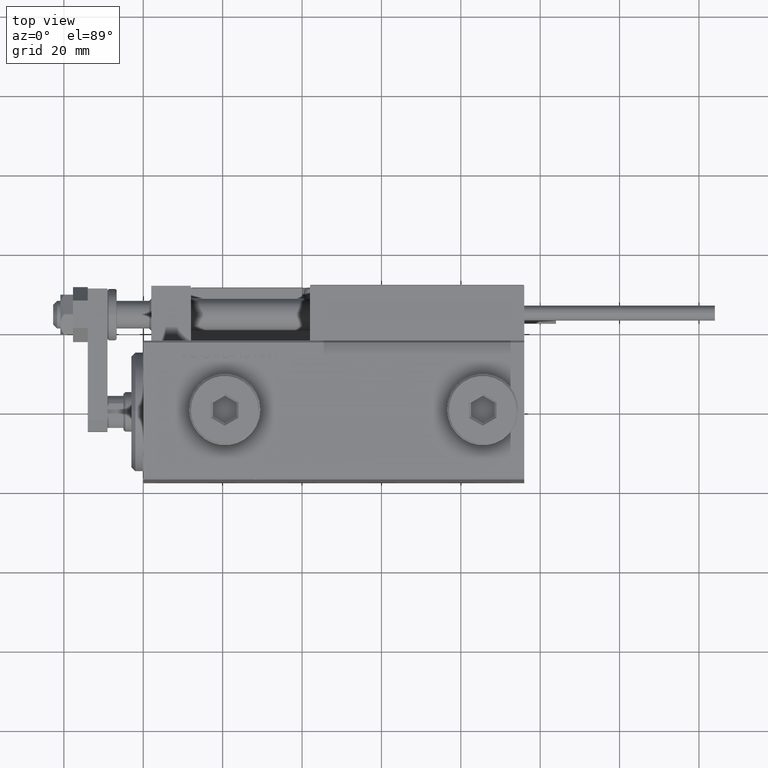
[diagram: clean part render]
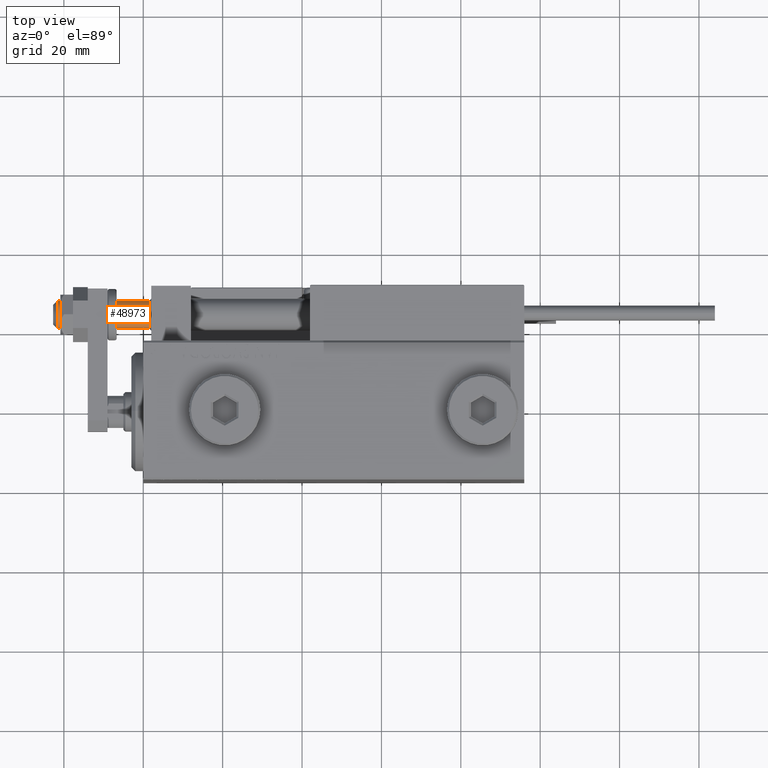
[diagram: same view with one face highlighted and labeled with its STEP entity id]
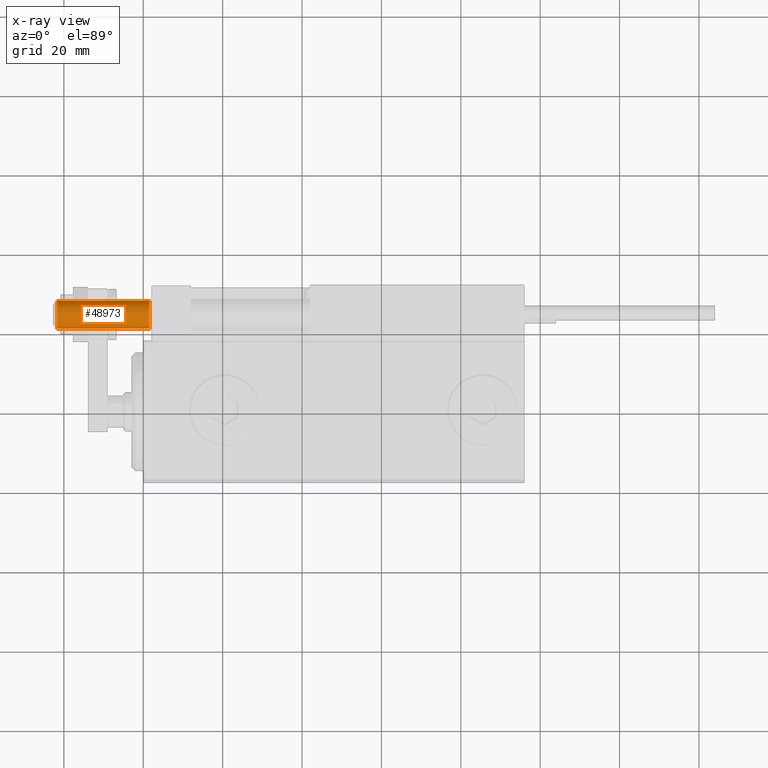
[diagram: x-ray of the same camera — body ghosted, the highlighted face saturated]
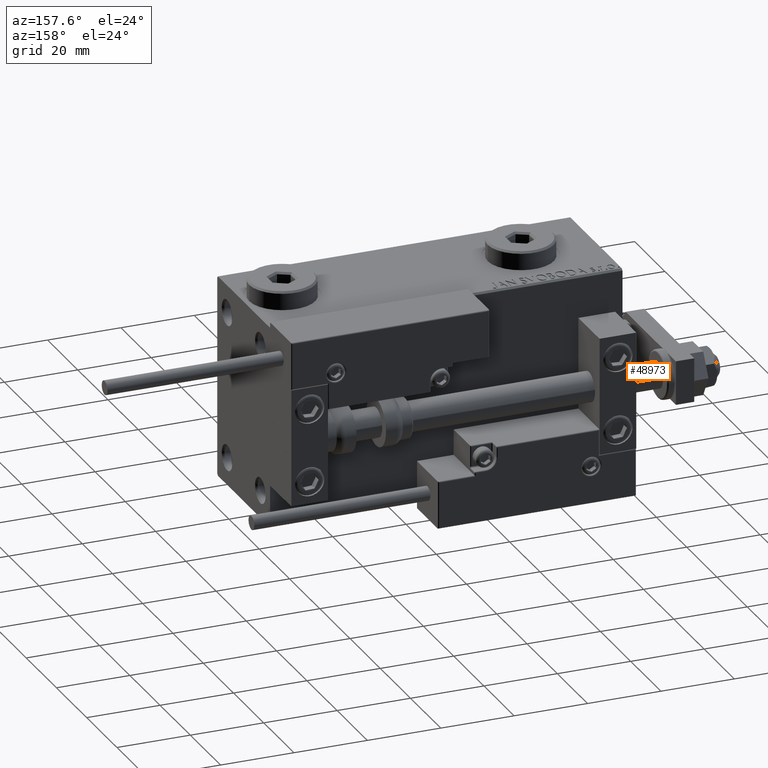
[diagram: same view with one face highlighted and labeled with its STEP entity id]
A machine part, top view. The second image highlights one B-rep face of the part: STEP entity #48973.
The next image is the same camera in x-ray: the body ghosted, the highlighted face saturated — about 0% of this face is hidden behind the body in this view.
A second angle (auxiliary view) of the same face is appended — the face is thin or edge-on in the first view.
In plain terms, the highlighted cylindrical surface (edge-blend (fillet) strip) has radius 3.5 mm, axis along (1, 0, 0).
Its self-contained STEP definition (entity closure, byte-faithful):
#829 = ORIENTED_EDGE ( 'NONE', *, *, #43714, .T. ) ;
#2927 = ORIENTED_EDGE ( 'NONE', *, *, #24004, .T. ) ;
#4814 = DIRECTION ( 'NONE',  ( -0.000000000000000000, -0.000000000000000000, 1.000000000000000000 ) ) ;
#4927 = LINE ( 'NONE', #9182, #45929 ) ;
#9182 = CARTESIAN_POINT ( 'NONE',  ( -3.500000000000000000, 4.286263797015736595E-16, -22.69999999999999929 ) ) ;
#9725 = CIRCLE ( 'NONE', #39414, 3.500000000000000000 ) ;
#12790 = CYLINDRICAL_SURFACE ( 'NONE', #30026, 3.500000000000000000 ) ;
#12960 = DIRECTION ( 'NONE',  ( -1.000000000000000000, 0.000000000000000000, 0.000000000000000000 ) ) ;
#13093 = VECTOR ( 'NONE', #38231, 1000.000000000000000 ) ;
#16630 = CARTESIAN_POINT ( 'NONE',  ( -3.500000000000000000, 4.286263797015736595E-16, -21.69999999999999929 ) ) ;
#16753 = FACE_OUTER_BOUND ( 'NONE', #35597, .T. ) ;
#17993 = DIRECTION ( 'NONE',  ( 0.000000000000000000, 0.000000000000000000, -1.000000000000000000 ) ) ;
#21538 = CARTESIAN_POINT ( 'NONE',  ( 0.000000000000000000, 0.000000000000000000, -22.69999999999999929 ) ) ;
#21972 = DIRECTION ( 'NONE',  ( 0.000000000000000000, 0.000000000000000000, 1.000000000000000000 ) ) ;
#24004 = EDGE_CURVE ( 'NONE', #26173, #50965, #4927, .T. ) ;
#24712 = VERTEX_POINT ( 'NONE', #40994 ) ;
#26173 = VERTEX_POINT ( 'NONE', #16630 ) ;
#26647 = CARTESIAN_POINT ( 'NONE',  ( 3.500000000000000000, 0.000000000000000000, -21.69999999999999929 ) ) ;
#28849 = VERTEX_POINT ( 'NONE', #26647 ) ;
#29488 = CARTESIAN_POINT ( 'NONE',  ( -3.500000000000000000, 4.286263797015736595E-16, 1.500000000000025535 ) ) ;
#30026 = AXIS2_PLACEMENT_3D ( 'NONE', #21538, #4814, #49680 ) ;
#33624 = EDGE_CURVE ( 'NONE', #28849, #24712, #41687, .T. ) ;
#34182 = AXIS2_PLACEMENT_3D ( 'NONE', #34472, #17993, #38719 ) ;
#34472 = CARTESIAN_POINT ( 'NONE',  ( 0.000000000000000000, 0.000000000000000000, 1.500000000000025535 ) ) ;
#35597 = EDGE_LOOP ( 'NONE', ( #49180, #2927, #829, #51981 ) ) ;
#36731 = CIRCLE ( 'NONE', #34182, 3.500000000000000000 ) ;
#38231 = DIRECTION ( 'NONE',  ( -0.000000000000000000, -0.000000000000000000, 1.000000000000000000 ) ) ;
#38719 = DIRECTION ( 'NONE',  ( 1.000000000000000000, 0.000000000000000000, 0.000000000000000000 ) ) ;
#39414 = AXIS2_PLACEMENT_3D ( 'NONE', #42157, #21972, #12960 ) ;
#40994 = CARTESIAN_POINT ( 'NONE',  ( 3.500000000000000000, 0.000000000000000000, 1.500000000000025535 ) ) ;
#41431 = CARTESIAN_POINT ( 'NONE',  ( 3.500000000000000000, 0.000000000000000000, -22.69999999999999929 ) ) ;
#41687 = LINE ( 'NONE', #41431, #13093 ) ;
#42097 = DIRECTION ( 'NONE',  ( -0.000000000000000000, -0.000000000000000000, 1.000000000000000000 ) ) ;
#42157 = CARTESIAN_POINT ( 'NONE',  ( 0.000000000000000000, 0.000000000000000000, -21.69999999999999929 ) ) ;
#43714 = EDGE_CURVE ( 'NONE', #50965, #24712, #36731, .T. ) ;
#45929 = VECTOR ( 'NONE', #42097, 1000.000000000000000 ) ;
#48973 = ADVANCED_FACE ( 'NONE', ( #16753 ), #12790, .T. ) ;
#49180 = ORIENTED_EDGE ( 'NONE', *, *, #51260, .T. ) ;
#49680 = DIRECTION ( 'NONE',  ( 1.000000000000000000, 0.000000000000000000, 0.000000000000000000 ) ) ;
#50965 = VERTEX_POINT ( 'NONE', #29488 ) ;
#51260 = EDGE_CURVE ( 'NONE', #28849, #26173, #9725, .T. ) ;
#51981 = ORIENTED_EDGE ( 'NONE', *, *, #33624, .F. ) ;